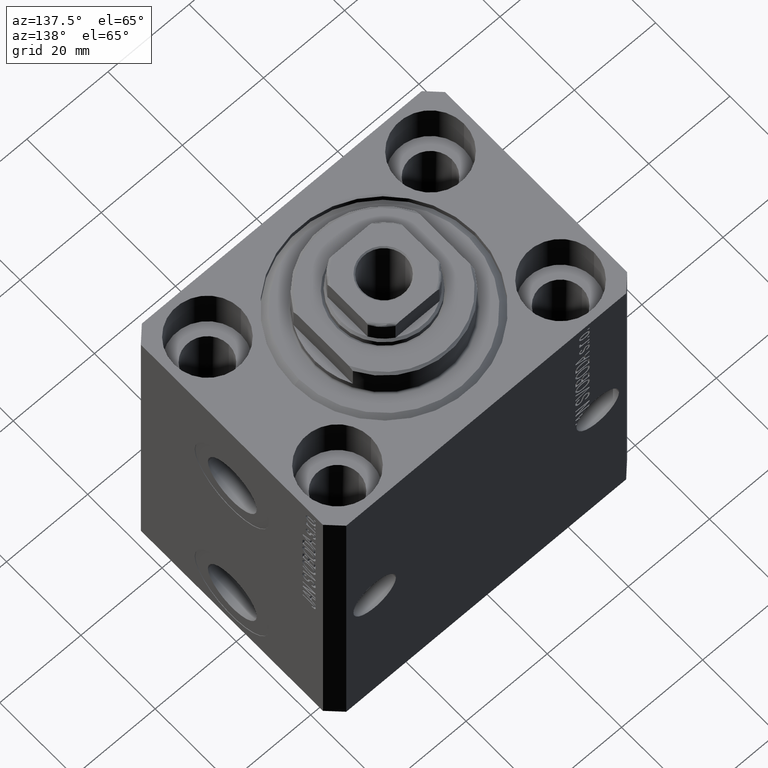
[diagram: clean part render]
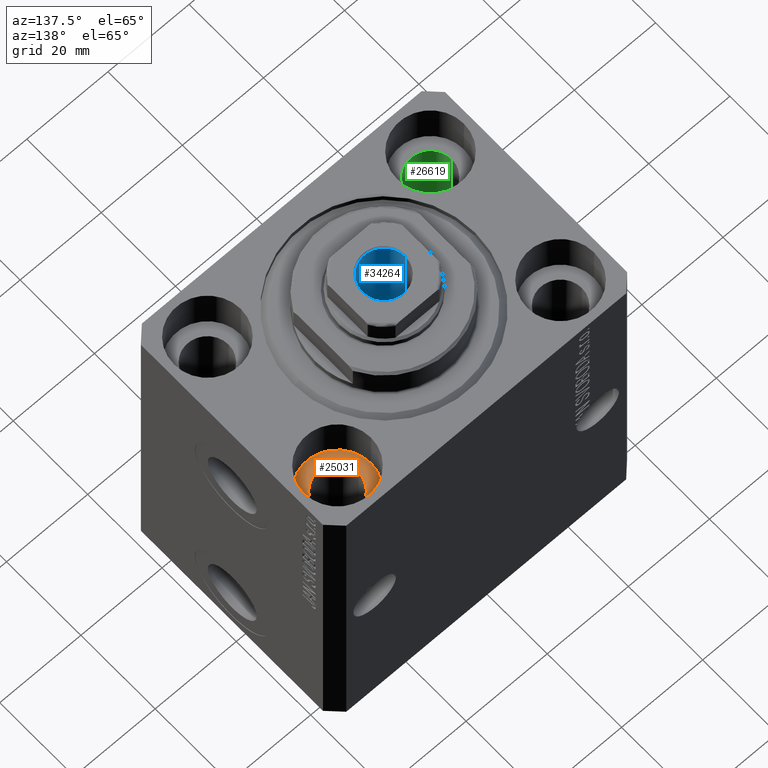
[diagram: same view with three faces highlighted in distinct colors, each labeled with its STEP entity id]
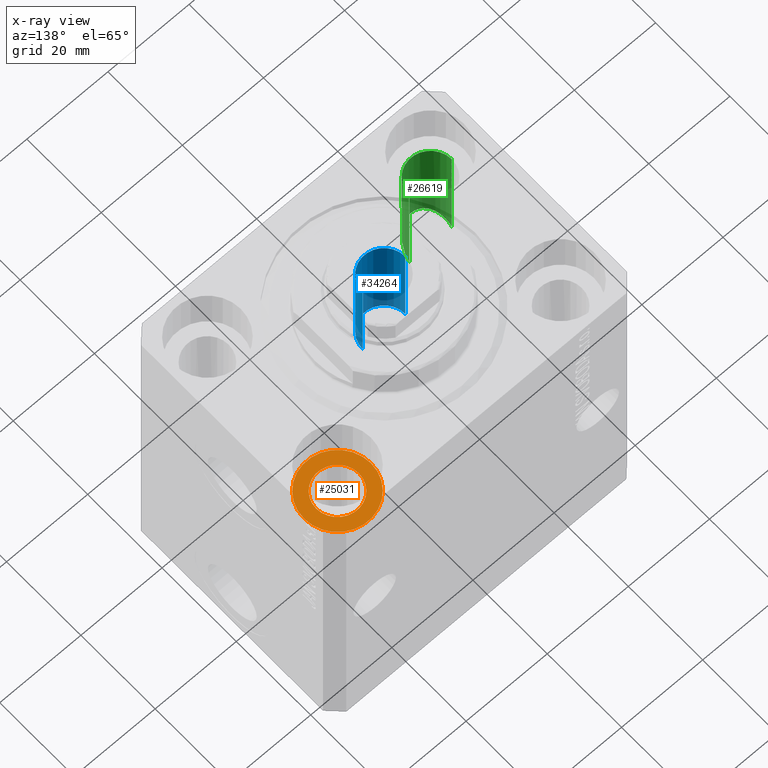
[diagram: x-ray of the same camera — body ghosted, the three highlighted faces saturated]
A machine part, auxiliary view with three faces highlighted in distinct colors.
The next image is the same camera in x-ray (body ghosted, the three faces saturated) — at least one of them is partly hidden behind the body in this view.
Their STEP definitions:

[orange] entity #25031 — the highlighted planar face has unit normal (0, 0, 1).
#2470 = EDGE_LOOP ( 'NONE', ( #30966, #30698 ) ) ;
#2899 = DIRECTION ( 'NONE',  ( 1.000000000000000000, 0.000000000000000000, -0.000000000000000000 ) ) ;
#4990 = DIRECTION ( 'NONE',  ( 0.000000000000000000, 0.000000000000000000, 1.000000000000000000 ) ) ;
#7487 = AXIS2_PLACEMENT_3D ( 'NONE', #23290, #30731, #27338 ) ;
#8037 = AXIS2_PLACEMENT_3D ( 'NONE', #26447, #12682, #40225 ) ;
#10981 = ORIENTED_EDGE ( 'NONE', *, *, #33114, .F. ) ;
#12682 = DIRECTION ( 'NONE',  ( 0.000000000000000000, 0.000000000000000000, 1.000000000000000000 ) ) ;
#13044 = PLANE ( 'NONE',  #33870 ) ;
#13256 = ORIENTED_EDGE ( 'NONE', *, *, #26301, .F. ) ;
#14446 = AXIS2_PLACEMENT_3D ( 'NONE', #18156, #39373, #19048 ) ;
#14700 = CIRCLE ( 'NONE', #7487, 8.249999999999992895 ) ;
#16214 = EDGE_LOOP ( 'NONE', ( #10981, #13256 ) ) ;
#18156 = CARTESIAN_POINT ( 'NONE',  ( 27.49999999999999645, 17.50000000000001066, -11.00000000000000000 ) ) ;
#18353 = CARTESIAN_POINT ( 'NONE',  ( 22.25000000000000000, 17.50000000000001066, -11.00000000000000000 ) ) ;
#18731 = DIRECTION ( 'NONE',  ( 1.000000000000000000, 0.000000000000000000, 0.000000000000000000 ) ) ;
#18953 = DIRECTION ( 'NONE',  ( 0.000000000000000000, 0.000000000000000000, 1.000000000000000000 ) ) ;
#19048 = DIRECTION ( 'NONE',  ( 1.000000000000000000, 0.000000000000000000, 0.000000000000000000 ) ) ;
#19350 = CARTESIAN_POINT ( 'NONE',  ( 32.74999999999999289, 17.50000000000001066, -11.00000000000000000 ) ) ;
#20046 = FACE_OUTER_BOUND ( 'NONE', #2470, .T. ) ;
#20287 = CIRCLE ( 'NONE', #8037, 8.249999999999992895 ) ;
#21360 = CARTESIAN_POINT ( 'NONE',  ( 35.74999999999999289, 17.50000000000001066, -11.00000000000000000 ) ) ;
#23290 = CARTESIAN_POINT ( 'NONE',  ( 27.49999999999999645, 17.50000000000001066, -11.00000000000000000 ) ) ;
#23713 = CARTESIAN_POINT ( 'NONE',  ( 19.25000000000000000, 17.50000000000001066, -11.00000000000000000 ) ) ;
#24613 = AXIS2_PLACEMENT_3D ( 'NONE', #35878, #18953, #18731 ) ;
#25031 = ADVANCED_FACE ( 'NONE', ( #26798, #20046 ), #13044, .T. ) ;
#26301 = EDGE_CURVE ( 'NONE', #32663, #34723, #32442, .T. ) ;
#26447 = CARTESIAN_POINT ( 'NONE',  ( 27.49999999999999645, 17.50000000000001066, -11.00000000000000000 ) ) ;
#26798 = FACE_BOUND ( 'NONE', #16214, .T. ) ;
#27338 = DIRECTION ( 'NONE',  ( 1.000000000000000000, 0.000000000000000000, 0.000000000000000000 ) ) ;
#28219 = CIRCLE ( 'NONE', #24613, 5.249999999999997335 ) ;
#30698 = ORIENTED_EDGE ( 'NONE', *, *, #41914, .T. ) ;
#30731 = DIRECTION ( 'NONE',  ( 0.000000000000000000, 0.000000000000000000, 1.000000000000000000 ) ) ;
#30966 = ORIENTED_EDGE ( 'NONE', *, *, #32043, .T. ) ;
#32043 = EDGE_CURVE ( 'NONE', #36679, #40537, #20287, .T. ) ;
#32442 = CIRCLE ( 'NONE', #14446, 5.249999999999997335 ) ;
#32663 = VERTEX_POINT ( 'NONE', #18353 ) ;
#33114 = EDGE_CURVE ( 'NONE', #34723, #32663, #28219, .T. ) ;
#33785 = CARTESIAN_POINT ( 'NONE',  ( 27.49999999999999645, 17.50000000000001066, -11.00000000000000000 ) ) ;
#33870 = AXIS2_PLACEMENT_3D ( 'NONE', #33785, #4990, #2899 ) ;
#34723 = VERTEX_POINT ( 'NONE', #19350 ) ;
#35878 = CARTESIAN_POINT ( 'NONE',  ( 27.49999999999999645, 17.50000000000001066, -11.00000000000000000 ) ) ;
#36679 = VERTEX_POINT ( 'NONE', #21360 ) ;
#39373 = DIRECTION ( 'NONE',  ( 0.000000000000000000, 0.000000000000000000, 1.000000000000000000 ) ) ;
#40225 = DIRECTION ( 'NONE',  ( 1.000000000000000000, 0.000000000000000000, 0.000000000000000000 ) ) ;
#40537 = VERTEX_POINT ( 'NONE', #23713 ) ;
#41914 = EDGE_CURVE ( 'NONE', #40537, #36679, #14700, .T. ) ;

[blue] entity #34264 — the highlighted cylindrical surface (edge-blend (fillet) strip) has radius 5.25 mm, axis along (0, 0, 1).
#1785 = VECTOR ( 'NONE', #19843, 1000.000000000000000 ) ;
#3294 = CARTESIAN_POINT ( 'NONE',  ( 5.249999999999995559, 0.000000000000000000, 84.80000000000002558 ) ) ;
#3624 = EDGE_CURVE ( 'NONE', #17532, #5075, #26819, .T. ) ;
#5075 = VERTEX_POINT ( 'NONE', #32891 ) ;
#5946 = LINE ( 'NONE', #29178, #29091 ) ;
#6040 = ORIENTED_EDGE ( 'NONE', *, *, #3624, .T. ) ;
#6643 = CARTESIAN_POINT ( 'NONE',  ( -5.249999999999994671, 6.429395695523597250E-16, 60.10000000000000853 ) ) ;
#7217 = EDGE_CURVE ( 'NONE', #5075, #26119, #31321, .T. ) ;
#9489 = DIRECTION ( 'NONE',  ( -0.000000000000000000, -0.000000000000000000, 1.000000000000000000 ) ) ;
#10363 = DIRECTION ( 'NONE',  ( 1.000000000000000000, 0.000000000000000000, 0.000000000000000000 ) ) ;
#12434 = CARTESIAN_POINT ( 'NONE',  ( 5.249999999999994671, 0.000000000000000000, 60.10000000000000853 ) ) ;
#12702 = DIRECTION ( 'NONE',  ( -0.000000000000000000, -0.000000000000000000, 1.000000000000000000 ) ) ;
#12868 = FACE_OUTER_BOUND ( 'NONE', #30493, .T. ) ;
#13740 = CARTESIAN_POINT ( 'NONE',  ( 0.000000000000000000, 0.000000000000000000, 85.10000000000000853 ) ) ;
#15375 = AXIS2_PLACEMENT_3D ( 'NONE', #28598, #29272, #42367 ) ;
#16900 = AXIS2_PLACEMENT_3D ( 'NONE', #40562, #34220, #40349 ) ;
#17532 = VERTEX_POINT ( 'NONE', #6643 ) ;
#19843 = DIRECTION ( 'NONE',  ( -0.000000000000000000, -0.000000000000000000, 1.000000000000000000 ) ) ;
#23431 = CARTESIAN_POINT ( 'NONE',  ( -5.249999999999995559, 6.429395695523600208E-16, 85.10000000000000853 ) ) ;
#24058 = ORIENTED_EDGE ( 'NONE', *, *, #7217, .T. ) ;
#26119 = VERTEX_POINT ( 'NONE', #3294 ) ;
#26819 = LINE ( 'NONE', #23431, #1785 ) ;
#28598 = CARTESIAN_POINT ( 'NONE',  ( 0.000000000000000000, 0.000000000000000000, 60.10000000000000853 ) ) ;
#29091 = VECTOR ( 'NONE', #12702, 1000.000000000000000 ) ;
#29178 = CARTESIAN_POINT ( 'NONE',  ( 5.249999999999995559, 0.000000000000000000, 85.10000000000000853 ) ) ;
#29272 = DIRECTION ( 'NONE',  ( -0.000000000000000000, -0.000000000000000000, 1.000000000000000000 ) ) ;
#30317 = VERTEX_POINT ( 'NONE', #12434 ) ;
#30493 = EDGE_LOOP ( 'NONE', ( #36009, #6040, #24058, #33756 ) ) ;
#31321 = CIRCLE ( 'NONE', #16900, 5.249999999999995559 ) ;
#31952 = CIRCLE ( 'NONE', #15375, 5.249999999999994671 ) ;
#32891 = CARTESIAN_POINT ( 'NONE',  ( -5.249999999999995559, 6.429395695523600208E-16, 84.80000000000002558 ) ) ;
#33756 = ORIENTED_EDGE ( 'NONE', *, *, #38768, .F. ) ;
#34220 = DIRECTION ( 'NONE',  ( 0.000000000000000000, 0.000000000000000000, 1.000000000000000000 ) ) ;
#34264 = ADVANCED_FACE ( 'NONE', ( #12868 ), #44653, .F. ) ;
#34711 = AXIS2_PLACEMENT_3D ( 'NONE', #13740, #9489, #10363 ) ;
#36009 = ORIENTED_EDGE ( 'NONE', *, *, #37508, .F. ) ;
#37508 = EDGE_CURVE ( 'NONE', #17532, #30317, #31952, .T. ) ;
#38768 = EDGE_CURVE ( 'NONE', #30317, #26119, #5946, .T. ) ;
#40349 = DIRECTION ( 'NONE',  ( 1.000000000000000000, 0.000000000000000000, 0.000000000000000000 ) ) ;
#40562 = CARTESIAN_POINT ( 'NONE',  ( 0.000000000000000000, 0.000000000000000000, 84.80000000000002558 ) ) ;
#42367 = DIRECTION ( 'NONE',  ( 1.000000000000000000, 0.000000000000000000, 0.000000000000000000 ) ) ;
#44653 = CYLINDRICAL_SURFACE ( 'NONE', #34711, 5.249999999999995559 ) ;

[green] entity #26619 — the highlighted cylindrical surface (edge-blend (fillet) strip) has radius 5.25 mm, axis along (0, 0, 1).
#1976 = VECTOR ( 'NONE', #39608, 1000.000000000000000 ) ;
#2306 = DIRECTION ( 'NONE',  ( -0.000000000000000000, -0.000000000000000000, 1.000000000000000000 ) ) ;
#3887 = CIRCLE ( 'NONE', #14714, 5.250000000000000888 ) ;
#3962 = VERTEX_POINT ( 'NONE', #18159 ) ;
#5641 = EDGE_CURVE ( 'NONE', #3962, #20593, #25131, .T. ) ;
#6424 = EDGE_CURVE ( 'NONE', #20593, #32995, #3887, .T. ) ;
#7276 =( BOUNDED_CURVE ( )  B_SPLINE_CURVE ( 3, ( #23888, #34272, #41263, #16247 ),
 .UNSPECIFIED., .F., .F. ) 
 B_SPLINE_CURVE_WITH_KNOTS ( ( 4, 4 ),
 ( 4.712388980384689674, 7.853981633974482790 ),
 .UNSPECIFIED. ) 
 CURVE ( )  GEOMETRIC_REPRESENTATION_ITEM ( )  RATIONAL_B_SPLINE_CURVE ( ( 1.000000000000000000, 0.3333333333333333703, 0.3333333333333333703, 1.000000000000000000 ) ) 
 REPRESENTATION_ITEM ( '' )  );
#7993 = CARTESIAN_POINT ( 'NONE',  ( -32.75000000000000000, -17.50000000000000000, -80.00000000000000000 ) ) ;
#8913 = VECTOR ( 'NONE', #10480, 1000.000000000000000 ) ;
#10480 = DIRECTION ( 'NONE',  ( -0.000000000000000000, -0.000000000000000000, 1.000000000000000000 ) ) ;
#11484 = AXIS2_PLACEMENT_3D ( 'NONE', #39987, #2306, #37265 ) ;
#11844 = ORIENTED_EDGE ( 'NONE', *, *, #17472, .F. ) ;
#12075 = CARTESIAN_POINT ( 'NONE',  ( -22.25000000000000355, -17.50000000000000000, -80.00000000000000000 ) ) ;
#12176 = CARTESIAN_POINT ( 'NONE',  ( -22.25000000000000355, -17.50000000000000000, -11.00000000000000000 ) ) ;
#12785 = EDGE_LOOP ( 'NONE', ( #33416, #22920, #29878, #11844 ) ) ;
#14714 = AXIS2_PLACEMENT_3D ( 'NONE', #16812, #44353, #26756 ) ;
#16071 = VERTEX_POINT ( 'NONE', #32698 ) ;
#16247 = CARTESIAN_POINT ( 'NONE',  ( -32.74999999999999289, -17.50000000000000000, -40.00000000000000711 ) ) ;
#16812 = CARTESIAN_POINT ( 'NONE',  ( -27.50000000000000355, -17.50000000000000000, -11.00000000000000000 ) ) ;
#17472 = EDGE_CURVE ( 'NONE', #16071, #32995, #40060, .T. ) ;
#18159 = CARTESIAN_POINT ( 'NONE',  ( -32.74999999999999289, -17.50000000000000000, -40.00000000000000711 ) ) ;
#20593 = VERTEX_POINT ( 'NONE', #33975 ) ;
#22920 = ORIENTED_EDGE ( 'NONE', *, *, #5641, .T. ) ;
#23888 = CARTESIAN_POINT ( 'NONE',  ( -22.25000000000000000, -17.50000000000000000, -40.00000000000000711 ) ) ;
#25131 = LINE ( 'NONE', #7993, #8913 ) ;
#26619 = ADVANCED_FACE ( 'NONE', ( #39752 ), #43361, .F. ) ;
#26756 = DIRECTION ( 'NONE',  ( 1.000000000000000000, 0.000000000000000000, 0.000000000000000000 ) ) ;
#29878 = ORIENTED_EDGE ( 'NONE', *, *, #6424, .T. ) ;
#32698 = CARTESIAN_POINT ( 'NONE',  ( -22.25000000000000000, -17.50000000000000000, -40.00000000000000711 ) ) ;
#32995 = VERTEX_POINT ( 'NONE', #12176 ) ;
#33416 = ORIENTED_EDGE ( 'NONE', *, *, #38171, .T. ) ;
#33975 = CARTESIAN_POINT ( 'NONE',  ( -32.75000000000000000, -17.50000000000000000, -11.00000000000000000 ) ) ;
#34272 = CARTESIAN_POINT ( 'NONE',  ( -22.24999999999999645, -28.00000000000000000, -29.50000000000001066 ) ) ;
#37265 = DIRECTION ( 'NONE',  ( 1.000000000000000000, 0.000000000000000000, 0.000000000000000000 ) ) ;
#38171 = EDGE_CURVE ( 'NONE', #16071, #3962, #7276, .T. ) ;
#39608 = DIRECTION ( 'NONE',  ( -0.000000000000000000, -0.000000000000000000, 1.000000000000000000 ) ) ;
#39752 = FACE_OUTER_BOUND ( 'NONE', #12785, .T. ) ;
#39987 = CARTESIAN_POINT ( 'NONE',  ( -27.50000000000000355, -17.50000000000000000, -80.00000000000000000 ) ) ;
#40060 = LINE ( 'NONE', #12075, #1976 ) ;
#41263 = CARTESIAN_POINT ( 'NONE',  ( -32.74999999999999289, -28.00000000000000000, -29.50000000000001066 ) ) ;
#43361 = CYLINDRICAL_SURFACE ( 'NONE', #11484, 5.250000000000000888 ) ;
#44353 = DIRECTION ( 'NONE',  ( 0.000000000000000000, 0.000000000000000000, 1.000000000000000000 ) ) ;